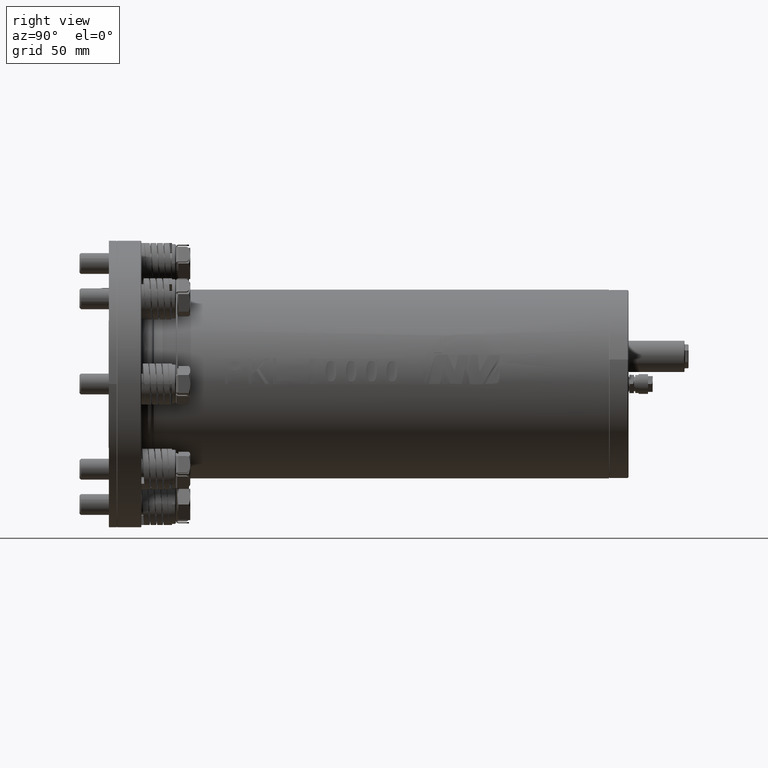
[diagram: clean part render]
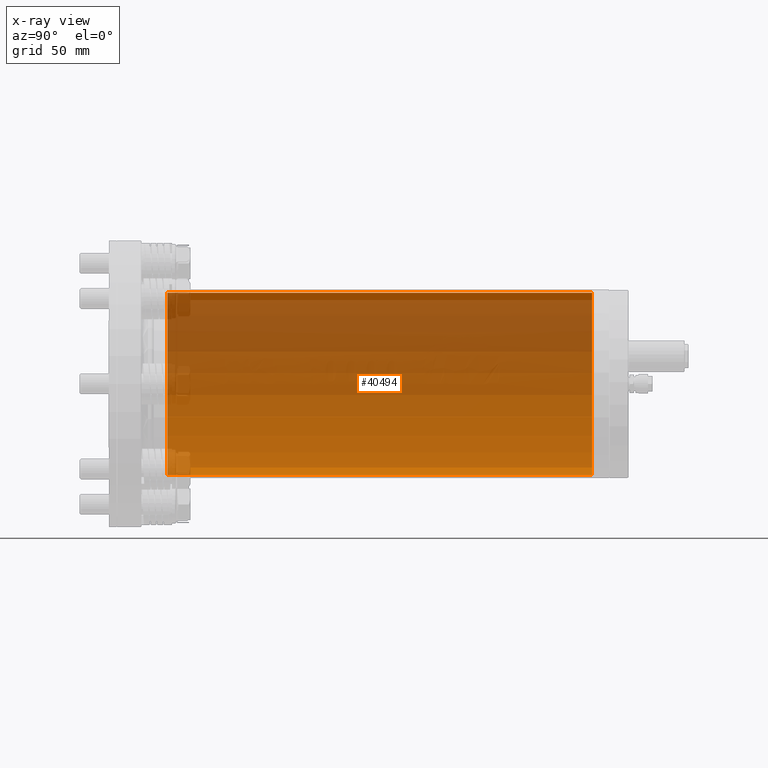
[diagram: x-ray — body ghosted, one internal face saturated and labeled with its STEP entity id]
A machine part, right view, then the same camera in x-ray: the body is ghosted and one INTERNAL B-rep face — a face not visible from any outside direction — is saturated and labeled: STEP entity #40494.
In plain terms, the highlighted cylindrical surface (partial cylindrical patch) has radius 70 mm, axis along (0, -1, 0).
Its self-contained STEP definition (entity closure, byte-faithful):
#129 = CARTESIAN_POINT ( 'NONE',  ( 1.387778780781446000E-014, 45.00000000000000000, -70.00000000000000000 ) ) ;
#2349 = VERTEX_POINT ( 'NONE', #50836 ) ;
#2631 = VERTEX_POINT ( 'NONE', #129 ) ;
#5854 = FACE_OUTER_BOUND ( 'NONE', #40020, .T. ) ;
#5861 = CYLINDRICAL_SURFACE ( 'NONE', #70542, 70.00000000000000000 ) ;
#6727 = AXIS2_PLACEMENT_3D ( 'NONE', #29566, #29597, #29598 ) ;
#6748 = AXIS2_PLACEMENT_3D ( 'NONE', #29902, #29937, #29938 ) ;
#8188 = CARTESIAN_POINT ( 'NONE',  ( 2.245031540184593600E-014, 384.0000000000000000, 70.00000000000000000 ) ) ;
#8189 = DIRECTION ( 'NONE',  ( 0.0000000000000000000, -1.000000000000000000, 0.0000000000000000000 ) ) ;
#11806 = DIRECTION ( 'NONE',  ( 0.0000000000000000000, 0.0000000000000000000, -1.000000000000000000 ) ) ;
#11807 = DIRECTION ( 'NONE',  ( 0.0000000000000000000, -1.000000000000000000, 0.0000000000000000000 ) ) ;
#11808 = CARTESIAN_POINT ( 'NONE',  ( 1.387778780781446000E-014, 384.0000000000000000, -2.785665071561700000E-030 ) ) ;
#15438 = ORIENTED_EDGE ( 'NONE', *, *, #59303, .F. ) ;
#15439 = ORIENTED_EDGE ( 'NONE', *, *, #59258, .T. ) ;
#15440 = ORIENTED_EDGE ( 'NONE', *, *, #47818, .T. ) ;
#15441 = ORIENTED_EDGE ( 'NONE', *, *, #59305, .T. ) ;
#29566 = CARTESIAN_POINT ( 'NONE',  ( 1.387778780781446000E-014, 45.00000000000000000, -2.785665071561700000E-030 ) ) ;
#29597 = DIRECTION ( 'NONE',  ( 0.0000000000000000000, -1.000000000000000000, 0.0000000000000000000 ) ) ;
#29598 = DIRECTION ( 'NONE',  ( 0.0000000000000000000, 0.0000000000000000000, -1.000000000000000000 ) ) ;
#29900 = CARTESIAN_POINT ( 'NONE',  ( 1.387778780781446000E-014, 384.0000000000000000, -70.00000000000000000 ) ) ;
#29901 = DIRECTION ( 'NONE',  ( 0.0000000000000000000, -1.000000000000000000, 0.0000000000000000000 ) ) ;
#29902 = CARTESIAN_POINT ( 'NONE',  ( 1.387778780781446000E-014, 371.0000000000000000, -2.785665071561700000E-030 ) ) ;
#29937 = DIRECTION ( 'NONE',  ( 0.0000000000000000000, 1.000000000000000000, 0.0000000000000000000 ) ) ;
#29938 = DIRECTION ( 'NONE',  ( 0.0000000000000000000, 0.0000000000000000000, 1.000000000000000000 ) ) ;
#40020 = EDGE_LOOP ( 'NONE', ( #15441, #15440, #15439, #15438 ) ) ;
#40494 = ADVANCED_FACE ( 'NONE', ( #5854 ), #5861, .F. ) ;
#47818 = EDGE_CURVE ( 'NONE', #2349, #49832, #74263, .T. ) ;
#49791 = VERTEX_POINT ( 'NONE', #71476 ) ;
#49832 = VERTEX_POINT ( 'NONE', #71557 ) ;
#50836 = CARTESIAN_POINT ( 'NONE',  ( 2.245031540184593600E-014, 371.0000000000000000, 70.00000000000000000 ) ) ;
#59258 = EDGE_CURVE ( 'NONE', #49832, #2631, #74944, .T. ) ;
#59303 = EDGE_CURVE ( 'NONE', #49791, #2631, #74984, .T. ) ;
#59305 = EDGE_CURVE ( 'NONE', #49791, #2349, #74987, .T. ) ;
#70542 = AXIS2_PLACEMENT_3D ( 'NONE', #11808, #11807, #11806 ) ;
#71476 = CARTESIAN_POINT ( 'NONE',  ( 1.387778780781446000E-014, 371.0000000000000000, -70.00000000000000000 ) ) ;
#71557 = CARTESIAN_POINT ( 'NONE',  ( 2.245031540184593600E-014, 45.00000000000000000, 70.00000000000000000 ) ) ;
#74263 = LINE ( 'NONE', #8188, #74266 ) ;
#74266 = VECTOR ( 'NONE', #8189, 1000.000000000000000 ) ;
#74944 = CIRCLE ( 'NONE', #6727, 70.00000000000000000 ) ;
#74984 = LINE ( 'NONE', #29900, #74985 ) ;
#74985 = VECTOR ( 'NONE', #29901, 1000.000000000000000 ) ;
#74987 = CIRCLE ( 'NONE', #6748, 70.00000000000000000 ) ;